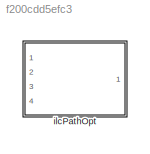
MODEL slx_f200cdd5efc3
KIND library
CONFIG AbsTol = auto
CONFIG EnableMultiTasking = off
CONFIG FixedStep = auto
CONFIG MaxStep = auto
CONFIG MinStep = auto
CONFIG RelTol = 1e-3
CONFIG SampleTimeConstraint = Unconstrained
CONFIG Solver = VariableStepAuto
CONFIG SolverName = VariableStepAuto
CONFIG StartTime = 0.0
CONFIG StopTime = 10.0
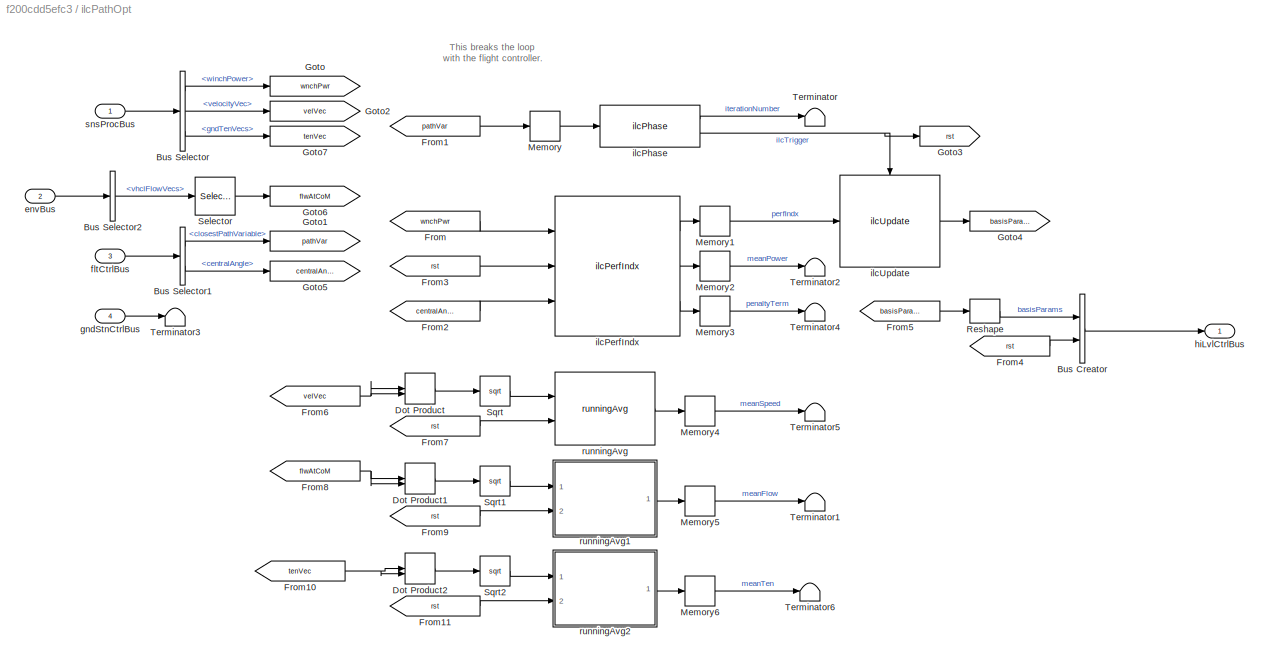
BLOCK [SubSystem] ilcPathOpt
  InitFcn = initializeBussesFromBlock(gcb)
  LoadFcn = initializeBussesFromBlock(gcb)
  MinAlgLoopOccurrences = on
  Ports = [4, 1]
  RequestExecContextInheritance = off
  StartFcn = initializeBussesFromBlock(gcb)
BLOCK [BusCreator] ilcPathOpt/Bus Creator
  DisplayOption = bar
  InheritFromInputs = on
  Inputs = 2
  OutDataTypeStr = Bus: hiLvlCtrlBus
  Ports = [2, 1]
BLOCK [BusSelector] ilcPathOpt/Bus Selector
  OutputAsBus = off
  OutputSignals = winchPower,velocityVec,gndTenVecs
  Ports = [1, 3]
BLOCK [BusSelector] ilcPathOpt/Bus Selector1
  OutputAsBus = off
  OutputSignals = closestPathVariable,centralAngle
  Ports = [1, 2]
BLOCK [BusSelector] ilcPathOpt/Bus Selector2
  OutputAsBus = off
  OutputSignals = vhclFlowVecs
  Ports = [1, 1]
BLOCK [DotProduct] ilcPathOpt/Dot Product
  OutDataTypeStr = Inherit: Inherit via internal rule
BLOCK [DotProduct] ilcPathOpt/Dot Product1
  OutDataTypeStr = Inherit: Inherit via internal rule
BLOCK [DotProduct] ilcPathOpt/Dot Product2
  OutDataTypeStr = Inherit: Inherit via internal rule
BLOCK [From] ilcPathOpt/From
  GotoTag = wnchPwr
BLOCK [From] ilcPathOpt/From1
  GotoTag = pathVar
BLOCK [From] ilcPathOpt/From10
  GotoTag = tenVec
BLOCK [From] ilcPathOpt/From11
  GotoTag = rst
BLOCK [From] ilcPathOpt/From2
  GotoTag = centralAngle
BLOCK [From] ilcPathOpt/From3
  GotoTag = rst
BLOCK [From] ilcPathOpt/From4
  GotoTag = rst
BLOCK [From] ilcPathOpt/From5
  GotoTag = basisParams
BLOCK [From] ilcPathOpt/From6
  GotoTag = velVec
BLOCK [From] ilcPathOpt/From7
  GotoTag = rst
BLOCK [From] ilcPathOpt/From8
  GotoTag = flwAtCoM
BLOCK [From] ilcPathOpt/From9
  GotoTag = rst
BLOCK [Goto] ilcPathOpt/Goto
  GotoTag = wnchPwr
BLOCK [Goto] ilcPathOpt/Goto1
  GotoTag = pathVar
BLOCK [Goto] ilcPathOpt/Goto2
  GotoTag = velVec
BLOCK [Goto] ilcPathOpt/Goto3
  GotoTag = rst
BLOCK [Goto] ilcPathOpt/Goto4
  GotoTag = basisParams
BLOCK [Goto] ilcPathOpt/Goto5
  GotoTag = centralAngle
BLOCK [Goto] ilcPathOpt/Goto6
  GotoTag = flwAtCoM
BLOCK [Goto] ilcPathOpt/Goto7
  GotoTag = tenVec
BLOCK [Memory] ilcPathOpt/Memory
BLOCK [Memory] ilcPathOpt/Memory1
BLOCK [Memory] ilcPathOpt/Memory2
BLOCK [Memory] ilcPathOpt/Memory3
BLOCK [Memory] ilcPathOpt/Memory4
BLOCK [Memory] ilcPathOpt/Memory5
BLOCK [Memory] ilcPathOpt/Memory6
BLOCK [Reshape] ilcPathOpt/Reshape
  OutputDimensionality = Row vector (2-D)
  Ports = [1, 1]
BLOCK [Selector] ilcPathOpt/Selector
  IndexOptions = Select all,Index vector (dialog)
  Indices = [1 3],5
  InputPortWidth = 3
  NumberOfDimensions = 2
  OutputSizes = 1,1
  Ports = [1, 1]
BLOCK [Sqrt] ilcPathOpt/Sqrt
BLOCK [Sqrt] ilcPathOpt/Sqrt1
BLOCK [Sqrt] ilcPathOpt/Sqrt2
BLOCK [Terminator] ilcPathOpt/Terminator
BLOCK [Terminator] ilcPathOpt/Terminator1
BLOCK [Terminator] ilcPathOpt/Terminator2
BLOCK [Terminator] ilcPathOpt/Terminator3
BLOCK [Terminator] ilcPathOpt/Terminator4
BLOCK [Terminator] ilcPathOpt/Terminator5
BLOCK [Terminator] ilcPathOpt/Terminator6
BLOCK [Inport] ilcPathOpt/envBus
  IconDisplay = Port number
  OutDataTypeStr = Bus: envBus
  Port = 2
BLOCK [Inport] ilcPathOpt/fltCtrlBus
  IconDisplay = Port number
  OutDataTypeStr = Bus: fltCtrlBus
  Port = 3
BLOCK [Inport] ilcPathOpt/gndStnCtrlBus
  IconDisplay = Port number
  OutDataTypeStr = Bus: gndStnCtrlBus
  Port = 4
BLOCK [Outport] ilcPathOpt/hiLvlCtrlBus
  IconDisplay = Port number
  OutDataTypeStr = Bus: hiLvlCtrlBus
BLOCK [Reference] ilcPathOpt/ilcPerfIndx  REF=ilcPerfIndx_cl/ilcPerfIndx
  Ports = [3, 3]
  SourceBlock = ilcPerfIndx_cl/ilcPerfIndx
BLOCK [Reference] ilcPathOpt/ilcPhase  REF=ilcPhase_cl/ilcPhase
  Ports = [1, 2]
  SourceBlock = ilcPhase_cl/ilcPhase
BLOCK [Reference] ilcPathOpt/ilcUpdate  REF=ilcUpdate_cl/ilcUpdate
  Ports = [1, 1, 0, 1]
  SourceBlock = ilcUpdate_cl/ilcUpdate
BLOCK [Reference] ilcPathOpt/runningAvg  REF=runningAvg_ul/runningAvg
  Ports = [2, 1]
  SourceBlock = runningAvg_ul/runningAvg
  SourceType = SubSystem
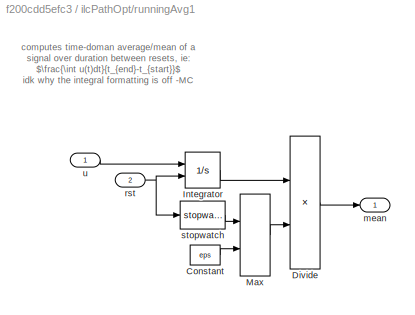
BLOCK [SubSystem] ilcPathOpt/runningAvg1
  Ports = [2, 1]
  RequestExecContextInheritance = off
BLOCK [Constant] ilcPathOpt/runningAvg1/Constant
  Value = eps
BLOCK [Product] ilcPathOpt/runningAvg1/Divide
  InputSameDT = off
  Inputs = */
  OutDataTypeStr = Inherit: Inherit via internal rule
  Ports = [2, 1]
  RndMeth = Floor
  SaturateOnIntegerOverflow = off
BLOCK [Integrator] ilcPathOpt/runningAvg1/Integrator
  ExternalReset = rising
  Ports = [2, 1]
BLOCK [MinMax] ilcPathOpt/runningAvg1/Max
  Function = max
  InputSameDT = off
  Inputs = 2
  Ports = [2, 1]
  SaturateOnIntegerOverflow = off
BLOCK [Outport] ilcPathOpt/runningAvg1/mean
  IconDisplay = Port number
BLOCK [Inport] ilcPathOpt/runningAvg1/rst
  IconDisplay = Port number
  Port = 2
BLOCK [Reference] ilcPathOpt/runningAvg1/stopwatch  REF=stopwatch_ul/stopwatch  (lib defined in slx_5231e8830116, slx_6b86a6863970)
  Ports = [1, 1]
  SourceBlock = stopwatch_ul/stopwatch
  SourceType = SubSystem
BLOCK [Inport] ilcPathOpt/runningAvg1/u
  IconDisplay = Port number
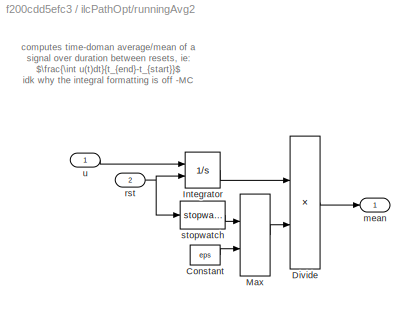
BLOCK [SubSystem] ilcPathOpt/runningAvg2
  Ports = [2, 1]
  RequestExecContextInheritance = off
BLOCK [Constant] ilcPathOpt/runningAvg2/Constant
  Value = eps
BLOCK [Product] ilcPathOpt/runningAvg2/Divide
  InputSameDT = off
  Inputs = */
  OutDataTypeStr = Inherit: Inherit via internal rule
  Ports = [2, 1]
  RndMeth = Floor
  SaturateOnIntegerOverflow = off
BLOCK [Integrator] ilcPathOpt/runningAvg2/Integrator
  ExternalReset = rising
  Ports = [2, 1]
BLOCK [MinMax] ilcPathOpt/runningAvg2/Max
  Function = max
  InputSameDT = off
  Inputs = 2
  Ports = [2, 1]
  SaturateOnIntegerOverflow = off
BLOCK [Outport] ilcPathOpt/runningAvg2/mean
  IconDisplay = Port number
BLOCK [Inport] ilcPathOpt/runningAvg2/rst
  IconDisplay = Port number
  Port = 2
BLOCK [Reference] ilcPathOpt/runningAvg2/stopwatch  REF=stopwatch_ul/stopwatch  (lib defined in slx_5231e8830116, slx_6b86a6863970)
  Ports = [1, 1]
  SourceBlock = stopwatch_ul/stopwatch
  SourceType = SubSystem
BLOCK [Inport] ilcPathOpt/runningAvg2/u
  IconDisplay = Port number
BLOCK [Inport] ilcPathOpt/snsProcBus
  IconDisplay = Port number
  OutDataTypeStr = Bus: sensorsProcessingBus
ANNOTATION ilcPathOpt: This breaks the loop with the flight controller.
ANNOTATION ilcPathOpt/runningAvg1: computes time-doman average/mean of a signal over duration between resets, ie: $\frac{\int u(t)dt}{t_{end}-t_{start}}$ idk why the integral formatting is off -MC
ANNOTATION ilcPathOpt/runningAvg2: computes time-doman average/mean of a signal over duration between resets, ie: $\frac{\int u(t)dt}{t_{end}-t_{start}}$ idk why the integral formatting is off -MC
LINE ilcPathOpt/Bus Creator:1 -> ilcPathOpt/hiLvlCtrlBus:1
LINE ilcPathOpt/Bus Selector1:1 -> ilcPathOpt/Goto1:1
LINE ilcPathOpt/Bus Selector1:2 -> ilcPathOpt/Goto5:1
LINE ilcPathOpt/Bus Selector2:1 -> ilcPathOpt/Selector:1
LINE ilcPathOpt/Bus Selector:1 -> ilcPathOpt/Goto:1
LINE ilcPathOpt/Bus Selector:2 -> ilcPathOpt/Goto2:1
LINE ilcPathOpt/Bus Selector:3 -> ilcPathOpt/Goto7:1
LINE ilcPathOpt/Dot Product1:1 -> ilcPathOpt/Sqrt1:1
LINE ilcPathOpt/Dot Product2:1 -> ilcPathOpt/Sqrt2:1
LINE ilcPathOpt/Dot Product:1 -> ilcPathOpt/Sqrt:1
NET ilcPathOpt/From10:1 -> ilcPathOpt/Dot Product2:1, ilcPathOpt/Dot Product2:2
LINE ilcPathOpt/From11:1 -> ilcPathOpt/runningAvg2:2
LINE ilcPathOpt/From1:1 -> ilcPathOpt/Memory:1
LINE ilcPathOpt/From2:1 -> ilcPathOpt/ilcPerfIndx:3
LINE ilcPathOpt/From3:1 -> ilcPathOpt/ilcPerfIndx:2
LINE ilcPathOpt/From4:1 -> ilcPathOpt/Bus Creator:2
LINE ilcPathOpt/From5:1 -> ilcPathOpt/Reshape:1
NET ilcPathOpt/From6:1 -> ilcPathOpt/Dot Product:1, ilcPathOpt/Dot Product:2
LINE ilcPathOpt/From7:1 -> ilcPathOpt/runningAvg:2
NET ilcPathOpt/From8:1 -> ilcPathOpt/Dot Product1:1, ilcPathOpt/Dot Product1:2
LINE ilcPathOpt/From9:1 -> ilcPathOpt/runningAvg1:2
LINE ilcPathOpt/From:1 -> ilcPathOpt/ilcPerfIndx:1
LINE ilcPathOpt/Memory1:1 -> ilcPathOpt/ilcUpdate:1
LINE ilcPathOpt/Memory2:1 -> ilcPathOpt/Terminator2:1
LINE ilcPathOpt/Memory3:1 -> ilcPathOpt/Terminator4:1
LINE ilcPathOpt/Memory4:1 -> ilcPathOpt/Terminator5:1
LINE ilcPathOpt/Memory5:1 -> ilcPathOpt/Terminator1:1
LINE ilcPathOpt/Memory6:1 -> ilcPathOpt/Terminator6:1
LINE ilcPathOpt/Memory:1 -> ilcPathOpt/ilcPhase:1
LINE ilcPathOpt/Reshape:1 -> ilcPathOpt/Bus Creator:1
LINE ilcPathOpt/Selector:1 -> ilcPathOpt/Goto6:1
LINE ilcPathOpt/Sqrt1:1 -> ilcPathOpt/runningAvg1:1
LINE ilcPathOpt/Sqrt2:1 -> ilcPathOpt/runningAvg2:1
LINE ilcPathOpt/Sqrt:1 -> ilcPathOpt/runningAvg:1
LINE ilcPathOpt/envBus:1 -> ilcPathOpt/Bus Selector2:1
LINE ilcPathOpt/fltCtrlBus:1 -> ilcPathOpt/Bus Selector1:1
LINE ilcPathOpt/gndStnCtrlBus:1 -> ilcPathOpt/Terminator3:1
LINE ilcPathOpt/ilcPerfIndx:1 -> ilcPathOpt/Memory1:1
LINE ilcPathOpt/ilcPerfIndx:2 -> ilcPathOpt/Memory2:1
LINE ilcPathOpt/ilcPerfIndx:3 -> ilcPathOpt/Memory3:1
LINE ilcPathOpt/ilcPhase:1 -> ilcPathOpt/Terminator:1
NET ilcPathOpt/ilcPhase:2 -> ilcPathOpt/Goto3:1, ilcPathOpt/ilcUpdate:trigger
LINE ilcPathOpt/ilcUpdate:1 -> ilcPathOpt/Goto4:1
LINE ilcPathOpt/runningAvg1/Constant:1 -> ilcPathOpt/runningAvg1/Max:2
LINE ilcPathOpt/runningAvg1/Divide:1 -> ilcPathOpt/runningAvg1/mean:1
LINE ilcPathOpt/runningAvg1/Integrator:1 -> ilcPathOpt/runningAvg1/Divide:1
LINE ilcPathOpt/runningAvg1/Max:1 -> ilcPathOpt/runningAvg1/Divide:2
NET ilcPathOpt/runningAvg1/rst:1 -> ilcPathOpt/runningAvg1/Integrator:2, ilcPathOpt/runningAvg1/stopwatch:1
LINE ilcPathOpt/runningAvg1/stopwatch:1 -> ilcPathOpt/runningAvg1/Max:1
LINE ilcPathOpt/runningAvg1/u:1 -> ilcPathOpt/runningAvg1/Integrator:1
LINE ilcPathOpt/runningAvg1:1 -> ilcPathOpt/Memory5:1
LINE ilcPathOpt/runningAvg2/Constant:1 -> ilcPathOpt/runningAvg2/Max:2
LINE ilcPathOpt/runningAvg2/Divide:1 -> ilcPathOpt/runningAvg2/mean:1
LINE ilcPathOpt/runningAvg2/Integrator:1 -> ilcPathOpt/runningAvg2/Divide:1
LINE ilcPathOpt/runningAvg2/Max:1 -> ilcPathOpt/runningAvg2/Divide:2
NET ilcPathOpt/runningAvg2/rst:1 -> ilcPathOpt/runningAvg2/Integrator:2, ilcPathOpt/runningAvg2/stopwatch:1
LINE ilcPathOpt/runningAvg2/stopwatch:1 -> ilcPathOpt/runningAvg2/Max:1
LINE ilcPathOpt/runningAvg2/u:1 -> ilcPathOpt/runningAvg2/Integrator:1
LINE ilcPathOpt/runningAvg2:1 -> ilcPathOpt/Memory6:1
LINE ilcPathOpt/runningAvg:1 -> ilcPathOpt/Memory4:1
LINE ilcPathOpt/snsProcBus:1 -> ilcPathOpt/Bus Selector:1
note: NET lines group one-source signal fan-out (src -> all destinations, sorted); 1:1 wires keep LINE
